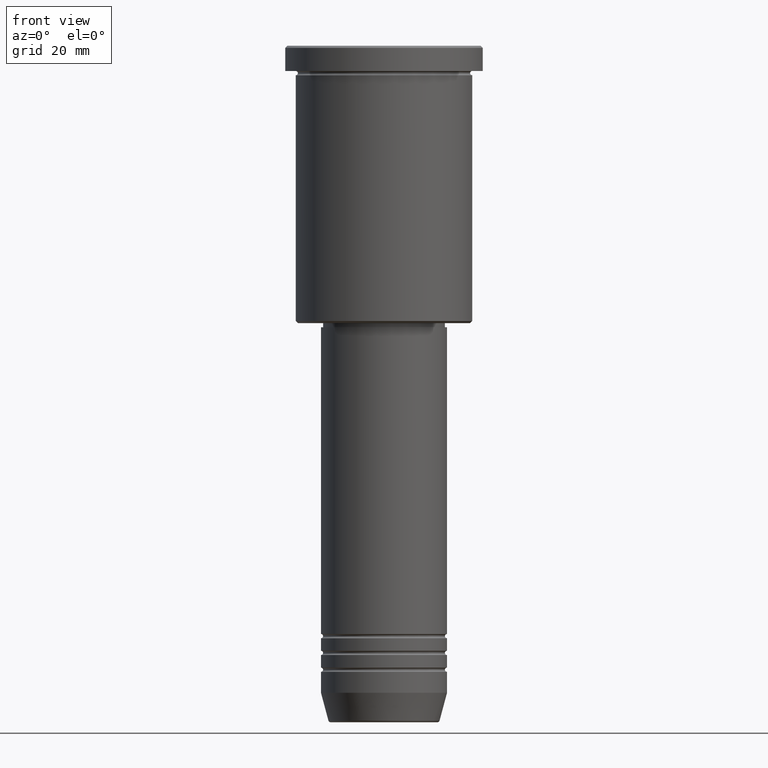
[diagram: clean part render]
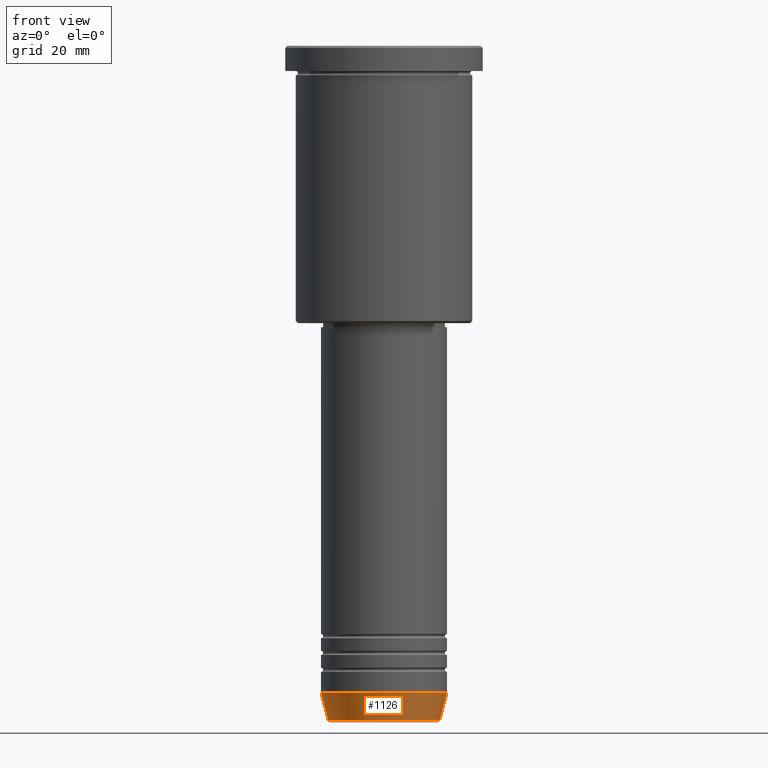
[diagram: same view with one face highlighted and labeled with its STEP entity id]
A machine part, front view. The second image highlights one B-rep face of the part: STEP entity #1126.
In plain terms, the highlighted conical surface has half-angle 15 deg.
Its self-contained STEP definition (entity closure, byte-faithful):
#71 = ORIENTED_EDGE ( 'NONE', *, *, #506, .T. ) ;
#103 = FACE_OUTER_BOUND ( 'NONE', #235, .T. ) ;
#105 = VECTOR ( 'NONE', #1179, 1000.000000000000000 ) ;
#143 = AXIS2_PLACEMENT_3D ( 'NONE', #348, #887, #614 ) ;
#220 = ORIENTED_EDGE ( 'NONE', *, *, #994, .T. ) ;
#235 = EDGE_LOOP ( 'NONE', ( #835, #71, #220, #877 ) ) ;
#249 = CARTESIAN_POINT ( 'NONE',  ( -13.22365507213719660, 1.728200442216588780E-15, -160.6294095225512706 ) ) ;
#348 = CARTESIAN_POINT ( 'NONE',  ( 0.000000000000000000, 0.000000000000000000, -154.0000000000000284 ) ) ;
#399 = CARTESIAN_POINT ( 'NONE',  ( 13.22365507213719482, 0.000000000000000000, -160.6294095225512706 ) ) ;
#431 = DIRECTION ( 'NONE',  ( 1.000000000000000000, 0.000000000000000000, 0.000000000000000000 ) ) ;
#484 = VERTEX_POINT ( 'NONE', #399 ) ;
#496 = EDGE_CURVE ( 'NONE', #543, #935, #536, .T. ) ;
#506 = EDGE_CURVE ( 'NONE', #1160, #484, #918, .T. ) ;
#536 = CIRCLE ( 'NONE', #143, 15.00000000000000000 ) ;
#543 = VERTEX_POINT ( 'NONE', #1050 ) ;
#614 = DIRECTION ( 'NONE',  ( 1.000000000000000000, 0.000000000000000000, 0.000000000000000000 ) ) ;
#637 = DIRECTION ( 'NONE',  ( -0.000000000000000000, -0.000000000000000000, 1.000000000000000000 ) ) ;
#643 = DIRECTION ( 'NONE',  ( 1.000000000000000000, 0.000000000000000000, 0.000000000000000000 ) ) ;
#661 = CARTESIAN_POINT ( 'NONE',  ( 0.000000000000000000, 0.000000000000000000, -154.0000000000000284 ) ) ;
#685 = CONICAL_SURFACE ( 'NONE', #978, 15.00000000000000000, 0.2617993877991500740 ) ;
#687 = EDGE_CURVE ( 'NONE', #1160, #543, #1155, .T. ) ;
#717 = VECTOR ( 'NONE', #1136, 1000.000000000000000 ) ;
#835 = ORIENTED_EDGE ( 'NONE', *, *, #687, .F. ) ;
#877 = ORIENTED_EDGE ( 'NONE', *, *, #496, .F. ) ;
#887 = DIRECTION ( 'NONE',  ( -0.000000000000000000, -0.000000000000000000, 1.000000000000000000 ) ) ;
#894 = LINE ( 'NONE', #1161, #105 ) ;
#918 = CIRCLE ( 'NONE', #1110, 13.22365507213719482 ) ;
#935 = VERTEX_POINT ( 'NONE', #1056 ) ;
#943 = CARTESIAN_POINT ( 'NONE',  ( -15.00000000000000000, 1.836970198721029589E-15, -154.0000000000000284 ) ) ;
#978 = AXIS2_PLACEMENT_3D ( 'NONE', #661, #637, #643 ) ;
#989 = DIRECTION ( 'NONE',  ( -0.000000000000000000, -0.000000000000000000, 1.000000000000000000 ) ) ;
#991 = CARTESIAN_POINT ( 'NONE',  ( 0.000000000000000000, 0.000000000000000000, -160.6294095225512706 ) ) ;
#994 = EDGE_CURVE ( 'NONE', #484, #935, #894, .T. ) ;
#1050 = CARTESIAN_POINT ( 'NONE',  ( -15.00000000000000000, 1.836970198721029589E-15, -154.0000000000000284 ) ) ;
#1056 = CARTESIAN_POINT ( 'NONE',  ( 15.00000000000000000, 0.000000000000000000, -154.0000000000000284 ) ) ;
#1110 = AXIS2_PLACEMENT_3D ( 'NONE', #991, #989, #431 ) ;
#1126 = ADVANCED_FACE ( 'NONE', ( #103 ), #685, .T. ) ;
#1136 = DIRECTION ( 'NONE',  ( -0.2588190451025213501, 3.169619151431772337E-17, 0.9659258262890680902 ) ) ;
#1155 = LINE ( 'NONE', #943, #717 ) ;
#1160 = VERTEX_POINT ( 'NONE', #249 ) ;
#1161 = CARTESIAN_POINT ( 'NONE',  ( 15.00000000000000000, 0.000000000000000000, -154.0000000000000284 ) ) ;
#1179 = DIRECTION ( 'NONE',  ( 0.2588190451025213501, 0.000000000000000000, 0.9659258262890680902 ) ) ;